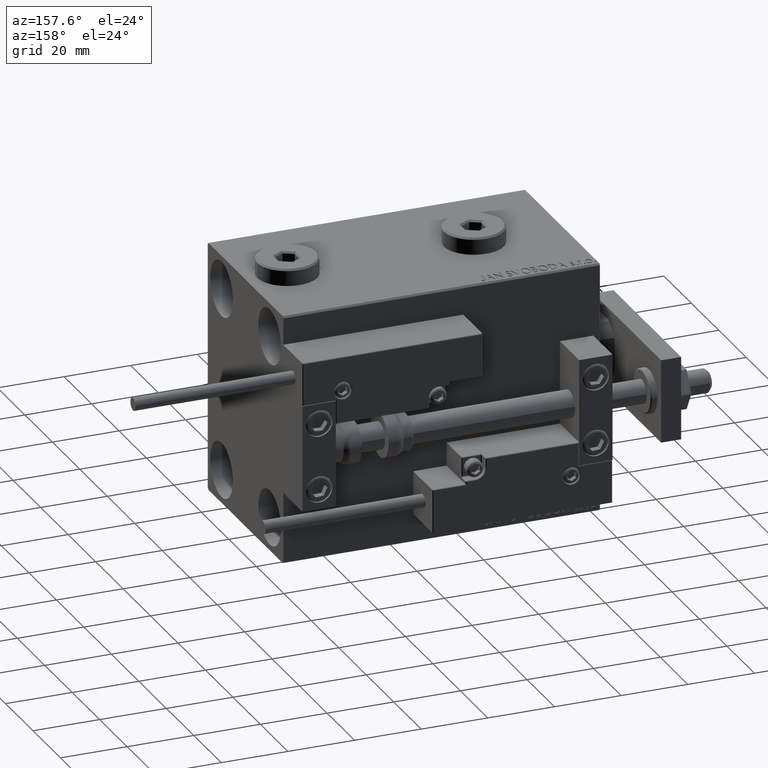
[diagram: clean part render]
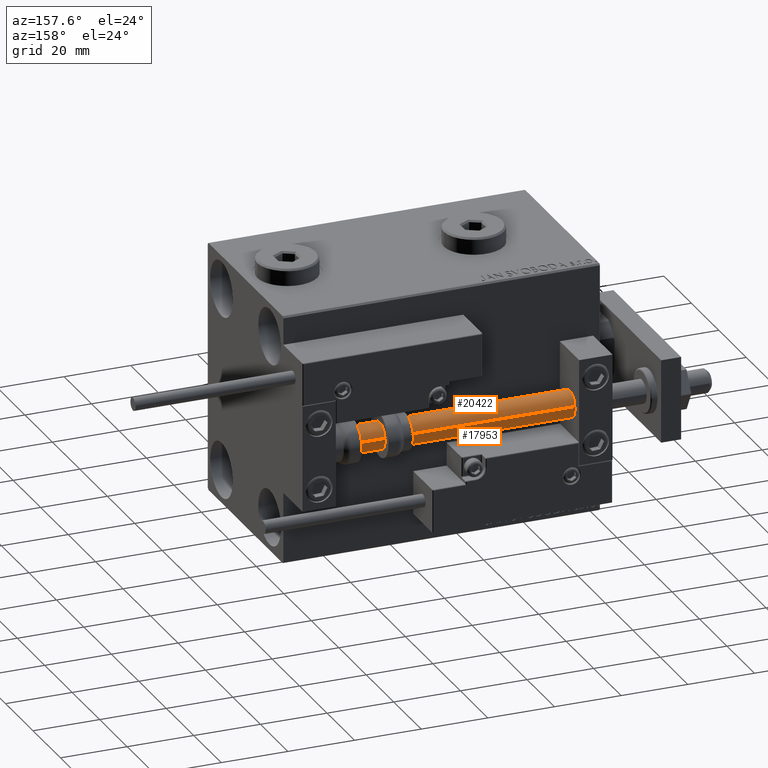
[diagram: same view with one multi-face feature highlighted, each face labeled with its STEP entity id]
A machine part, auxiliary view. The highlighted faces form ONE feature: a constant-radius fillet chain: 2 tangent blend faces with common blend radius 4 mm. The faces share edges in the B-rep.
Their STEP definitions:
[1] entity #17953 (Cylinder):
#672 = LINE ( 'NONE', #20749, #42936 ) ;
#2578 = EDGE_LOOP ( 'NONE', ( #33352, #18043, #32276, #32689 ) ) ;
#3833 = EDGE_CURVE ( 'NONE', #40544, #40103, #19270, .T. ) ;
#5089 = DIRECTION ( 'NONE',  ( -0.000000000000000000, -0.000000000000000000, -1.000000000000000000 ) ) ;
#6101 = DIRECTION ( 'NONE',  ( 0.000000000000000000, 0.000000000000000000, 1.000000000000000000 ) ) ;
#6688 = CARTESIAN_POINT ( 'NONE',  ( 0.000000000000000000, 0.000000000000000000, 95.00000000000000000 ) ) ;
#11763 = VECTOR ( 'NONE', #26839, 1000.000000000000000 ) ;
#12976 = AXIS2_PLACEMENT_3D ( 'NONE', #6688, #30430, #49948 ) ;
#13963 = DIRECTION ( 'NONE',  ( -0.000000000000000000, -0.000000000000000000, 1.000000000000000000 ) ) ;
#16065 = EDGE_CURVE ( 'NONE', #22331, #50759, #672, .T. ) ;
#17381 = DIRECTION ( 'NONE',  ( 1.000000000000000000, 0.000000000000000000, 0.000000000000000000 ) ) ;
#17862 = CARTESIAN_POINT ( 'NONE',  ( 0.000000000000000000, 0.000000000000000000, 95.00000000000000000 ) ) ;
#17953 = ADVANCED_FACE ( 'NONE', ( #22610 ), #30685, .T. ) ;
#18043 = ORIENTED_EDGE ( 'NONE', *, *, #46285, .F. ) ;
#19270 = LINE ( 'NONE', #46872, #11763 ) ;
#20455 = AXIS2_PLACEMENT_3D ( 'NONE', #17862, #6101, #29093 ) ;
#20749 = CARTESIAN_POINT ( 'NONE',  ( -4.000000000000000000, 0.000000000000000000, 95.00000000000000000 ) ) ;
#22331 = VERTEX_POINT ( 'NONE', #22367 ) ;
#22367 = CARTESIAN_POINT ( 'NONE',  ( -4.000000000000000000, 0.000000000000000000, 95.00000000000000000 ) ) ;
#22610 = FACE_OUTER_BOUND ( 'NONE', #2578, .T. ) ;
#23128 = EDGE_CURVE ( 'NONE', #50759, #40103, #25610, .T. ) ;
#25610 = CIRCLE ( 'NONE', #42249, 4.000000000000000000 ) ;
#26839 = DIRECTION ( 'NONE',  ( -0.000000000000000000, -0.000000000000000000, -1.000000000000000000 ) ) ;
#27478 = CARTESIAN_POINT ( 'NONE',  ( 4.000000000000000000, 4.898587196589412829E-16, 95.00000000000000000 ) ) ;
#29093 = DIRECTION ( 'NONE',  ( 1.000000000000000000, 0.000000000000000000, 0.000000000000000000 ) ) ;
#30430 = DIRECTION ( 'NONE',  ( -0.000000000000000000, -0.000000000000000000, -1.000000000000000000 ) ) ;
#30651 = CARTESIAN_POINT ( 'NONE',  ( -4.000000000000000000, 0.000000000000000000, 2.000000000000029310 ) ) ;
#30685 = CYLINDRICAL_SURFACE ( 'NONE', #12976, 4.000000000000000000 ) ;
#32102 = CIRCLE ( 'NONE', #20455, 4.000000000000000000 ) ;
#32276 = ORIENTED_EDGE ( 'NONE', *, *, #16065, .T. ) ;
#32689 = ORIENTED_EDGE ( 'NONE', *, *, #23128, .T. ) ;
#33352 = ORIENTED_EDGE ( 'NONE', *, *, #3833, .F. ) ;
#40103 = VERTEX_POINT ( 'NONE', #42634 ) ;
#40544 = VERTEX_POINT ( 'NONE', #27478 ) ;
#42249 = AXIS2_PLACEMENT_3D ( 'NONE', #49142, #13963, #17381 ) ;
#42634 = CARTESIAN_POINT ( 'NONE',  ( 4.000000000000000000, 4.898587196589412829E-16, 2.000000000000029310 ) ) ;
#42936 = VECTOR ( 'NONE', #5089, 1000.000000000000000 ) ;
#46285 = EDGE_CURVE ( 'NONE', #22331, #40544, #32102, .T. ) ;
#46872 = CARTESIAN_POINT ( 'NONE',  ( 4.000000000000000000, 4.898587196589412829E-16, 95.00000000000000000 ) ) ;
#49142 = CARTESIAN_POINT ( 'NONE',  ( 0.000000000000000000, 0.000000000000000000, 2.000000000000029310 ) ) ;
#49948 = DIRECTION ( 'NONE',  ( -1.000000000000000000, 0.000000000000000000, 0.000000000000000000 ) ) ;
#50759 = VERTEX_POINT ( 'NONE', #30651 ) ;
[2] entity #20422 (Cylinder):
#660 = EDGE_CURVE ( 'NONE', #40103, #50759, #10345, .T. ) ;
#672 = LINE ( 'NONE', #20749, #42936 ) ;
#1638 = CARTESIAN_POINT ( 'NONE',  ( 0.000000000000000000, 0.000000000000000000, 2.000000000000029310 ) ) ;
#2575 = EDGE_CURVE ( 'NONE', #40544, #22331, #26692, .T. ) ;
#3833 = EDGE_CURVE ( 'NONE', #40544, #40103, #19270, .T. ) ;
#4857 = DIRECTION ( 'NONE',  ( -1.000000000000000000, 0.000000000000000000, 0.000000000000000000 ) ) ;
#5089 = DIRECTION ( 'NONE',  ( -0.000000000000000000, -0.000000000000000000, -1.000000000000000000 ) ) ;
#5139 = AXIS2_PLACEMENT_3D ( 'NONE', #36056, #47500, #16246 ) ;
#6336 = AXIS2_PLACEMENT_3D ( 'NONE', #41567, #44728, #4857 ) ;
#10345 = CIRCLE ( 'NONE', #50256, 4.000000000000000000 ) ;
#10735 = ORIENTED_EDGE ( 'NONE', *, *, #3833, .T. ) ;
#11763 = VECTOR ( 'NONE', #26839, 1000.000000000000000 ) ;
#16065 = EDGE_CURVE ( 'NONE', #22331, #50759, #672, .T. ) ;
#16246 = DIRECTION ( 'NONE',  ( 1.000000000000000000, 0.000000000000000000, 0.000000000000000000 ) ) ;
#19270 = LINE ( 'NONE', #46872, #11763 ) ;
#20422 = ADVANCED_FACE ( 'NONE', ( #37419 ), #21012, .T. ) ;
#20749 = CARTESIAN_POINT ( 'NONE',  ( -4.000000000000000000, 0.000000000000000000, 95.00000000000000000 ) ) ;
#21012 = CYLINDRICAL_SURFACE ( 'NONE', #6336, 4.000000000000000000 ) ;
#21507 = ORIENTED_EDGE ( 'NONE', *, *, #2575, .F. ) ;
#22331 = VERTEX_POINT ( 'NONE', #22367 ) ;
#22367 = CARTESIAN_POINT ( 'NONE',  ( -4.000000000000000000, 0.000000000000000000, 95.00000000000000000 ) ) ;
#22477 = DIRECTION ( 'NONE',  ( 1.000000000000000000, 0.000000000000000000, 0.000000000000000000 ) ) ;
#24357 = ORIENTED_EDGE ( 'NONE', *, *, #660, .T. ) ;
#26692 = CIRCLE ( 'NONE', #5139, 4.000000000000000000 ) ;
#26839 = DIRECTION ( 'NONE',  ( -0.000000000000000000, -0.000000000000000000, -1.000000000000000000 ) ) ;
#27478 = CARTESIAN_POINT ( 'NONE',  ( 4.000000000000000000, 4.898587196589412829E-16, 95.00000000000000000 ) ) ;
#30032 = DIRECTION ( 'NONE',  ( -0.000000000000000000, -0.000000000000000000, 1.000000000000000000 ) ) ;
#30651 = CARTESIAN_POINT ( 'NONE',  ( -4.000000000000000000, 0.000000000000000000, 2.000000000000029310 ) ) ;
#36056 = CARTESIAN_POINT ( 'NONE',  ( 0.000000000000000000, 0.000000000000000000, 95.00000000000000000 ) ) ;
#37419 = FACE_OUTER_BOUND ( 'NONE', #43455, .T. ) ;
#40103 = VERTEX_POINT ( 'NONE', #42634 ) ;
#40544 = VERTEX_POINT ( 'NONE', #27478 ) ;
#41567 = CARTESIAN_POINT ( 'NONE',  ( 0.000000000000000000, 0.000000000000000000, 95.00000000000000000 ) ) ;
#41929 = ORIENTED_EDGE ( 'NONE', *, *, #16065, .F. ) ;
#42634 = CARTESIAN_POINT ( 'NONE',  ( 4.000000000000000000, 4.898587196589412829E-16, 2.000000000000029310 ) ) ;
#42936 = VECTOR ( 'NONE', #5089, 1000.000000000000000 ) ;
#43455 = EDGE_LOOP ( 'NONE', ( #21507, #10735, #24357, #41929 ) ) ;
#44728 = DIRECTION ( 'NONE',  ( -0.000000000000000000, -0.000000000000000000, -1.000000000000000000 ) ) ;
#46872 = CARTESIAN_POINT ( 'NONE',  ( 4.000000000000000000, 4.898587196589412829E-16, 95.00000000000000000 ) ) ;
#47500 = DIRECTION ( 'NONE',  ( 0.000000000000000000, 0.000000000000000000, 1.000000000000000000 ) ) ;
#50256 = AXIS2_PLACEMENT_3D ( 'NONE', #1638, #30032, #22477 ) ;
#50759 = VERTEX_POINT ( 'NONE', #30651 ) ;